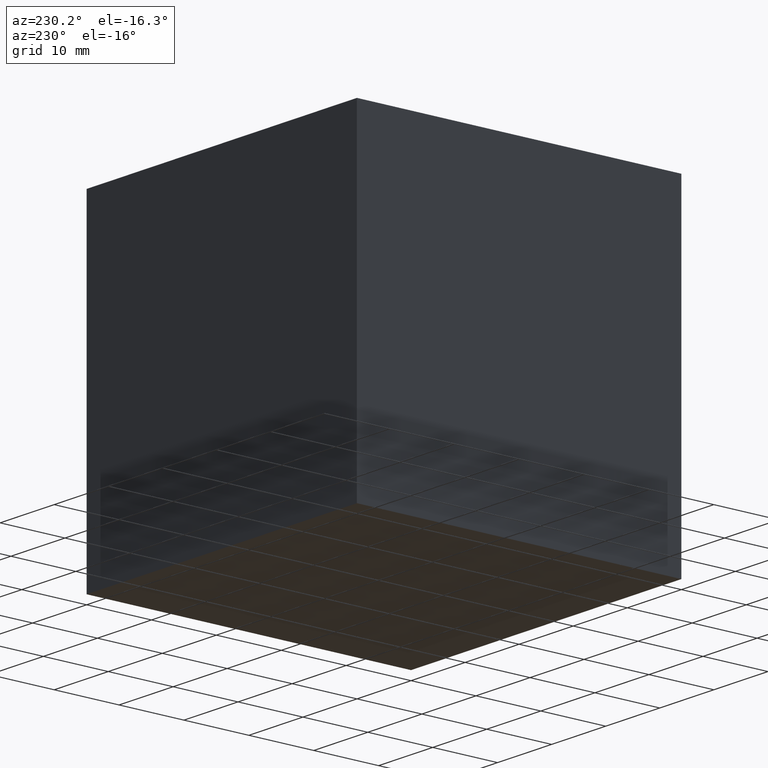
[diagram: clean part render]
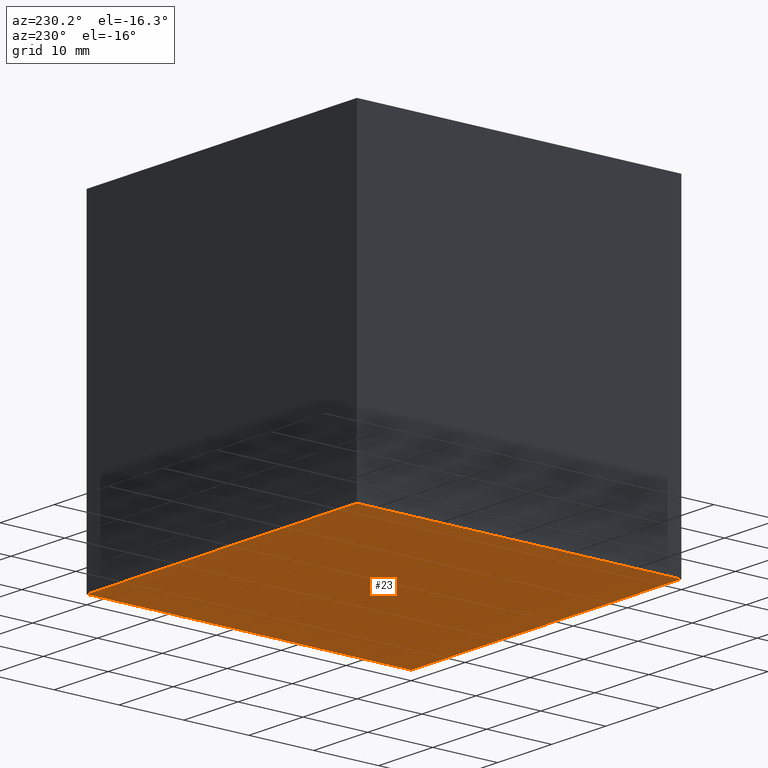
[diagram: same view with one face highlighted and labeled with its STEP entity id]
A machine part, auxiliary view. The second image highlights one B-rep face of the part: STEP entity #23.
In plain terms, the highlighted planar face has unit normal (0, -0, 1).
Its self-contained STEP definition (entity closure, byte-faithful):
#1 = EDGE_CURVE ( 'NONE', #24, #55, #176, .T. ) ;
#10 = ORIENTED_EDGE ( 'NONE', *, *, #248, .F. ) ;
#12 = CARTESIAN_POINT ( 'NONE',  ( -50.00000000000000000, 0.0000000000000000000, -49.99999999999999300 ) ) ;
#23 = ADVANCED_FACE ( 'NONE', ( #207 ), #172, .F. ) ;
#24 = VERTEX_POINT ( 'NONE', #132 ) ;
#40 = VERTEX_POINT ( 'NONE', #194 ) ;
#47 = DIRECTION ( 'NONE',  ( -1.000000000000000000, 0.0000000000000000000, 1.387778780781445700E-016 ) ) ;
#53 = CARTESIAN_POINT ( 'NONE',  ( 0.0000000000000000000, 50.00000000000000000, -50.00000000000000000 ) ) ;
#55 = VERTEX_POINT ( 'NONE', #12 ) ;
#71 = EDGE_CURVE ( 'NONE', #40, #55, #83, .T. ) ;
#81 = DIRECTION ( 'NONE',  ( 1.000000000000000000, 0.0000000000000000000, -1.387778780781445700E-016 ) ) ;
#83 = LINE ( 'NONE', #253, #228 ) ;
#91 = ORIENTED_EDGE ( 'NONE', *, *, #1, .F. ) ;
#94 = VECTOR ( 'NONE', #47, 1000.000000000000000 ) ;
#101 = EDGE_LOOP ( 'NONE', ( #127, #91, #10, #230 ) ) ;
#107 = DIRECTION ( 'NONE',  ( 1.387778780781445700E-016, -0.0000000000000000000, 1.000000000000000000 ) ) ;
#112 = CARTESIAN_POINT ( 'NONE',  ( -50.00000000000000000, 50.00000000000000000, -49.99999999999999300 ) ) ;
#127 = ORIENTED_EDGE ( 'NONE', *, *, #71, .T. ) ;
#132 = CARTESIAN_POINT ( 'NONE',  ( -50.00000000000000000, 50.00000000000000000, -49.99999999999999300 ) ) ;
#144 = CARTESIAN_POINT ( 'NONE',  ( 0.0000000000000000000, 50.00000000000000000, -50.00000000000000000 ) ) ;
#149 = LINE ( 'NONE', #226, #94 ) ;
#162 = DIRECTION ( 'NONE',  ( -1.000000000000000000, 0.0000000000000000000, 1.387778780781445700E-016 ) ) ;
#172 = PLANE ( 'NONE',  #198 ) ;
#174 = CARTESIAN_POINT ( 'NONE',  ( 0.0000000000000000000, 50.00000000000000000, -50.00000000000000000 ) ) ;
#176 = LINE ( 'NONE', #112, #195 ) ;
#194 = CARTESIAN_POINT ( 'NONE',  ( 0.0000000000000000000, 0.0000000000000000000, -50.00000000000000000 ) ) ;
#195 = VECTOR ( 'NONE', #262, 1000.000000000000000 ) ;
#198 = AXIS2_PLACEMENT_3D ( 'NONE', #144, #107, #81 ) ;
#207 = FACE_OUTER_BOUND ( 'NONE', #101, .T. ) ;
#210 = LINE ( 'NONE', #174, #263 ) ;
#215 = DIRECTION ( 'NONE',  ( -0.0000000000000000000, -1.000000000000000000, -0.0000000000000000000 ) ) ;
#226 = CARTESIAN_POINT ( 'NONE',  ( 0.0000000000000000000, 50.00000000000000000, -50.00000000000000000 ) ) ;
#228 = VECTOR ( 'NONE', #162, 1000.000000000000000 ) ;
#230 = ORIENTED_EDGE ( 'NONE', *, *, #250, .T. ) ;
#248 = EDGE_CURVE ( 'NONE', #291, #24, #149, .T. ) ;
#250 = EDGE_CURVE ( 'NONE', #291, #40, #210, .T. ) ;
#253 = CARTESIAN_POINT ( 'NONE',  ( 0.0000000000000000000, 0.0000000000000000000, -50.00000000000000000 ) ) ;
#262 = DIRECTION ( 'NONE',  ( -0.0000000000000000000, -1.000000000000000000, -0.0000000000000000000 ) ) ;
#263 = VECTOR ( 'NONE', #215, 1000.000000000000000 ) ;
#291 = VERTEX_POINT ( 'NONE', #53 ) ;